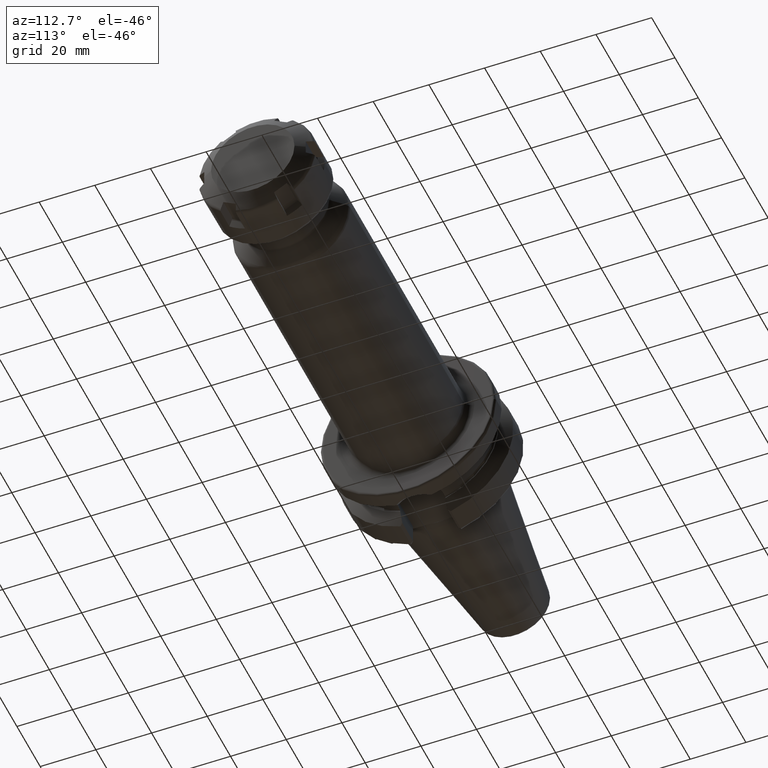
[diagram: clean part render]
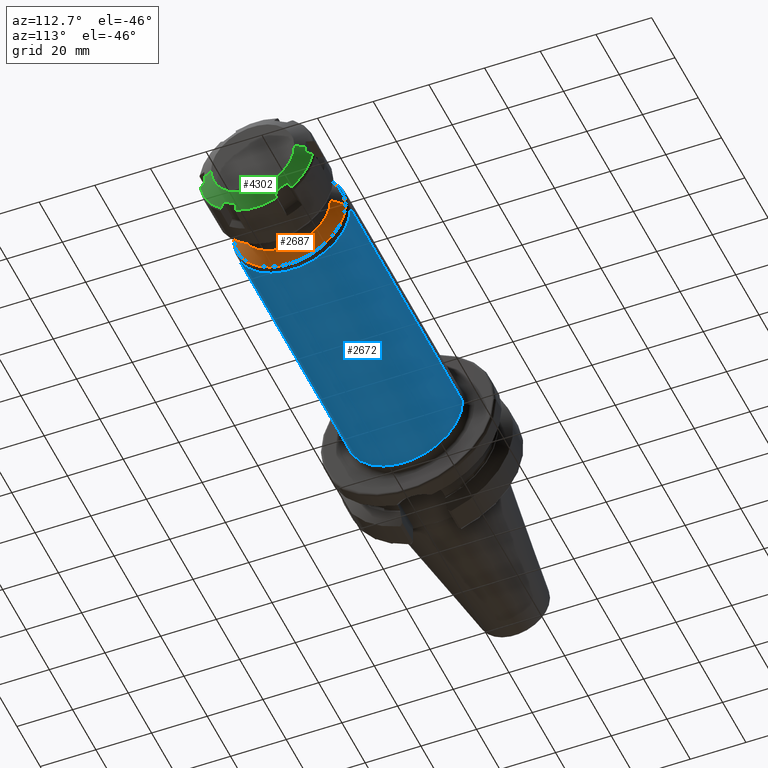
[diagram: same view with three faces highlighted in distinct colors, each labeled with its STEP entity id]
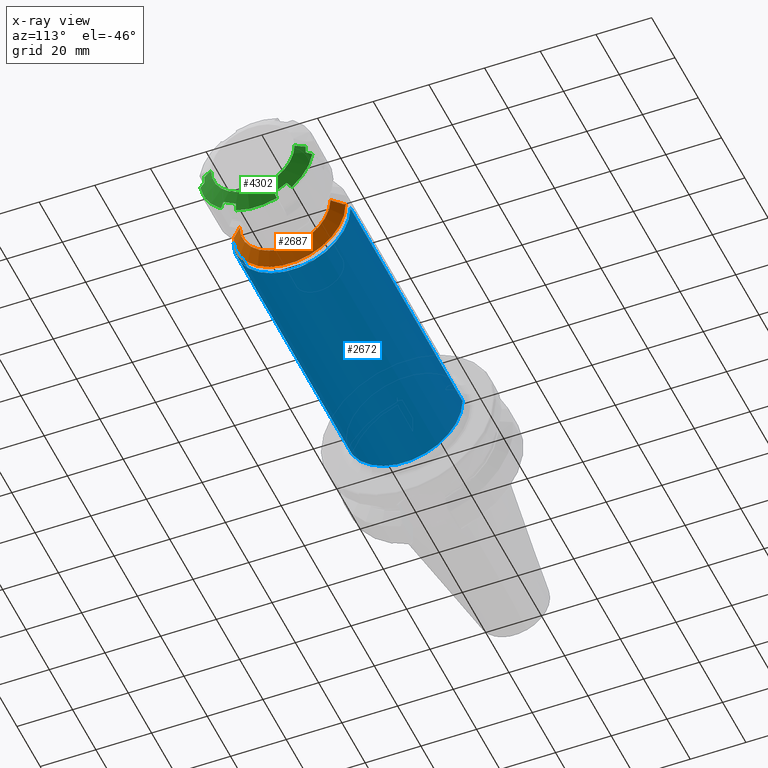
[diagram: x-ray of the same camera — body ghosted, the three highlighted faces saturated]
A machine part, auxiliary view with three faces highlighted in distinct colors.
The next image is the same camera in x-ray (body ghosted, the three faces saturated) — at least one of them is partly hidden behind the body in this view.
Their STEP definitions:

[orange] entity #2687 — the highlighted conical surface has half-angle 45 deg.
#894=CARTESIAN_POINT('',(1.283786796564E2,0.E0,0.E0));
#895=DIRECTION('',(-1.E0,0.E0,0.E0));
#896=DIRECTION('',(0.E0,1.E0,0.E0));
#897=AXIS2_PLACEMENT_3D('',#894,#895,#896);
#899=DIRECTION('',(-7.071067811865E-1,-7.071067811866E-1,-2.815876324346E-12));
#900=VECTOR('',#899,5.414213562372E0);
#901=CARTESIAN_POINT('',(1.322071067812E2,-1.629289321881E1,
8.869039863404E-13));
#902=LINE('',#901,#900);
#903=CARTESIAN_POINT('',(1.322071067812E2,0.E0,0.E0));
#904=DIRECTION('',(1.E0,0.E0,0.E0));
#905=DIRECTION('',(0.E0,-1.E0,0.E0));
#906=AXIS2_PLACEMENT_3D('',#903,#904,#905);
#908=DIRECTION('',(-7.071067811865E-1,7.071067811866E-1,2.815378832257E-12));
#909=VECTOR('',#908,5.414213562372E0);
#910=CARTESIAN_POINT('',(1.322071067812E2,1.629289321881E1,
-8.909694037952E-13));
#911=LINE('',#910,#909);
#1473=CARTESIAN_POINT('',(1.322071067812E2,-1.629289321881E1,0.E0));
#1474=CARTESIAN_POINT('',(1.322071067812E2,1.629289321881E1,0.E0));
#1475=VERTEX_POINT('',#1473);
#1476=VERTEX_POINT('',#1474);
#1485=CARTESIAN_POINT('',(1.283786796564E2,2.012132034356E1,0.E0));
#1486=CARTESIAN_POINT('',(1.283786796564E2,-2.012132034356E1,0.E0));
#1487=VERTEX_POINT('',#1485);
#1488=VERTEX_POINT('',#1486);
#2673=CARTESIAN_POINT('',(1.302928932188E2,0.E0,0.E0));
#2674=DIRECTION('',(-1.E0,0.E0,0.E0));
#2675=DIRECTION('',(0.E0,1.E0,0.E0));
#2676=AXIS2_PLACEMENT_3D('',#2673,#2674,#2675);
#2677=CONICAL_SURFACE('',#2676,1.820710678119E1,4.5E1);
#2678=ORIENTED_EDGE('',*,*,#2655,.T.);
#2680=ORIENTED_EDGE('',*,*,#2679,.F.);
#2682=ORIENTED_EDGE('',*,*,#2681,.T.);
#2684=ORIENTED_EDGE('',*,*,#2683,.T.);
#2685=EDGE_LOOP('',(#2678,#2680,#2682,#2684));
#2686=FACE_OUTER_BOUND('',#2685,.F.);
#2687=ADVANCED_FACE('',(#2686),#2677,.T.);
#898=CIRCLE('',#897,2.012132034356E1);
#907=CIRCLE('',#906,1.629289321881E1);
#2655=EDGE_CURVE('',#1487,#1488,#898,.T.);
#2679=EDGE_CURVE('',#1475,#1488,#902,.T.);
#2681=EDGE_CURVE('',#1475,#1476,#907,.T.);
#2683=EDGE_CURVE('',#1476,#1487,#911,.T.);

[blue] entity #2672 — the highlighted cylindrical surface (partial cylindrical patch) has radius 21 mm, axis along (1, 0, 0).
#876=CARTESIAN_POINT('',(1.262573593129E2,0.E0,0.E0));
#877=DIRECTION('',(-1.E0,0.E0,0.E0));
#878=DIRECTION('',(0.E0,1.E0,0.E0));
#879=AXIS2_PLACEMENT_3D('',#876,#877,#878);
#881=DIRECTION('',(-1.E0,0.E0,4.626039354949E-14));
#882=VECTOR('',#881,9.625735931288E1);
#883=CARTESIAN_POINT('',(1.262573593129E2,2.1E1,-3.075405800066E-12));
#884=LINE('',#883,#882);
#885=CARTESIAN_POINT('',(3.E1,0.E0,0.E0));
#886=DIRECTION('',(1.E0,0.E0,0.E0));
#887=DIRECTION('',(0.E0,-1.E0,0.E0));
#888=AXIS2_PLACEMENT_3D('',#885,#886,#887);
#890=DIRECTION('',(-1.E0,0.E0,-4.625854881271E-14));
#891=VECTOR('',#890,9.625735931288E1);
#892=CARTESIAN_POINT('',(1.262573593129E2,-2.1E1,3.074765702247E-12));
#893=LINE('',#892,#891);
#1469=CARTESIAN_POINT('',(3.E1,-2.1E1,0.E0));
#1470=CARTESIAN_POINT('',(3.E1,2.1E1,0.E0));
#1471=VERTEX_POINT('',#1469);
#1472=VERTEX_POINT('',#1470);
#1481=CARTESIAN_POINT('',(1.262573593129E2,2.1E1,0.E0));
#1482=CARTESIAN_POINT('',(1.262573593129E2,-2.1E1,0.E0));
#1483=VERTEX_POINT('',#1481);
#1484=VERTEX_POINT('',#1482);
#2661=CARTESIAN_POINT('',(2.095E1,0.E0,0.E0));
#2662=DIRECTION('',(1.E0,0.E0,0.E0));
#2663=DIRECTION('',(0.E0,-1.E0,0.E0));
#2664=AXIS2_PLACEMENT_3D('',#2661,#2662,#2663);
#2665=CYLINDRICAL_SURFACE('',#2664,2.1E1);
#2666=ORIENTED_EDGE('',*,*,#2652,.F.);
#2667=ORIENTED_EDGE('',*,*,#2627,.T.);
#2668=ORIENTED_EDGE('',*,*,#2597,.F.);
#2669=ORIENTED_EDGE('',*,*,#2624,.F.);
#2670=EDGE_LOOP('',(#2666,#2667,#2668,#2669));
#2671=FACE_OUTER_BOUND('',#2670,.F.);
#2672=ADVANCED_FACE('',(#2671),#2665,.T.);
#880=CIRCLE('',#879,2.1E1);
#889=CIRCLE('',#888,2.1E1);
#2597=EDGE_CURVE('',#1471,#1472,#889,.T.);
#2624=EDGE_CURVE('',#1484,#1471,#893,.T.);
#2627=EDGE_CURVE('',#1483,#1472,#884,.T.);
#2652=EDGE_CURVE('',#1483,#1484,#880,.T.);

[green] entity #4302 — the highlighted conical surface has half-angle 60 deg.
#3366=CARTESIAN_POINT('',(1.689674230311E1,7.405303719456E0,-1.898162537357E1));
#3367=CARTESIAN_POINT('',(1.708907504526E1,7.313084535866E0,-1.866001886072E1));
#3368=CARTESIAN_POINT('',(1.747048804972E1,7.130166601835E0,-1.802210821554E1));
#3369=CARTESIAN_POINT('',(1.784538315893E1,6.950287483250E0,-1.739479517924E1));
#3370=CARTESIAN_POINT('',(1.803119743883E1,6.861107026386E0,-1.708378596587E1));
#3372=CARTESIAN_POINT('',(1.689674230311E1,-1.915276904626E-14,0.E0));
#3373=DIRECTION('',(-1.E0,0.E0,0.E0));
#3374=DIRECTION('',(0.E0,3.634504892985E-1,-9.316135152673E-1));
#3375=AXIS2_PLACEMENT_3D('',#3372,#3373,#3374);
#3377=CARTESIAN_POINT('',(1.803119743883E1,-6.861107026386E0,
-1.708378596587E1));
#3378=CARTESIAN_POINT('',(1.784547076956E1,-6.950245435050E0,
-1.739464853974E1));
#3379=CARTESIAN_POINT('',(1.747066334160E1,-7.130082516612E0,
-1.802181497552E1));
#3380=CARTESIAN_POINT('',(1.708916272E1,-7.313042497819E0,-1.865987225663E1));
#3381=CARTESIAN_POINT('',(1.689674230311E1,-7.405303719456E0,
-1.898162537357E1));
#3383=CARTESIAN_POINT('',(1.803119743883E1,-1.136443912607E1,
-1.448378596587E1));
#3384=CARTESIAN_POINT('',(1.807831826555E1,-1.086395978015E1,
-1.477273785096E1));
#3385=CARTESIAN_POINT('',(1.814168574823E1,-9.863120560131E0,
-1.535057264405E1));
#3386=CARTESIAN_POINT('',(1.814168449187E1,-8.362394930781E0,
-1.621701699013E1));
#3387=CARTESIAN_POINT('',(1.807831703246E1,-7.361573275411E0,
-1.679484164227E1));
#3388=CARTESIAN_POINT('',(1.803119743883E1,-6.861107026386E0,
-1.708378596587E1));
#3390=CARTESIAN_POINT('',(1.689674230311E1,-1.273591791890E1,
-1.590399383057E1));
#3391=CARTESIAN_POINT('',(1.708907504526E1,-1.250350810055E1,
-1.566332641844E1));
#3392=CARTESIAN_POINT('',(1.747048804972E1,-1.204252024350E1,
-1.518595951818E1));
#3393=CARTESIAN_POINT('',(1.784538315893E1,-1.158919077723E1,
-1.471652311372E1));
#3394=CARTESIAN_POINT('',(1.803119743883E1,-1.136443912607E1,
-1.448378596587E1));
#3396=CARTESIAN_POINT('',(1.689674230311E1,-1.915276904626E-14,0.E0));
#3397=DIRECTION('',(-1.E0,0.E0,0.E0));
#3398=DIRECTION('',(0.E0,-6.250757260812E-1,-7.805641143840E-1));
#3399=AXIS2_PLACEMENT_3D('',#3396,#3397,#3398);
#3401=CARTESIAN_POINT('',(1.803119743883E1,-1.822554615245E1,-2.6E0));
#3402=CARTESIAN_POINT('',(1.784547076956E1,-1.853933024284E1,
-2.678235160582E0));
#3403=CARTESIAN_POINT('',(1.747066334160E1,-1.917239084941E1,
-2.836074897296E0));
#3404=CARTESIAN_POINT('',(1.708916272E1,-1.981644465452E1,-2.996655546247E0));
#3405=CARTESIAN_POINT('',(1.689674230311E1,-2.014122163836E1,
-3.077631542997E0));
#3407=CARTESIAN_POINT('',(1.813773006060E1,-1.822554615245E1,0.E0));
#3408=CARTESIAN_POINT('',(1.813773006060E1,-1.822554615245E1,
-2.889809035546E-1));
#3409=CARTESIAN_POINT('',(1.812978891864E1,-1.822554615245E1,
-8.668802635554E-1));
#3410=CARTESIAN_POINT('',(1.809415446357E1,-1.822554615245E1,
-1.733491685998E0));
#3411=CARTESIAN_POINT('',(1.805474752385E1,-1.822554615245E1,
-2.311174784706E0));
#3412=CARTESIAN_POINT('',(1.803119743883E1,-1.822554615245E1,-2.6E0));
#3414=DIRECTION('',(-5.E-1,-8.660254037844E-1,0.E0));
#3415=VECTOR('',#3414,3.724539878802E0);
#3416=CARTESIAN_POINT('',(2.E1,-1.5E1,0.E0));
#3417=LINE('',#3416,#3415);
#3418=CARTESIAN_POINT('',(2.E1,-2.266909448450E-14,0.E0));
#3419=DIRECTION('',(-1.E0,0.E0,0.E0));
#3420=DIRECTION('',(0.E0,1.E0,0.E0));
#3421=AXIS2_PLACEMENT_3D('',#3418,#3419,#3420);
#3423=DIRECTION('',(-5.E-1,8.660254037844E-1,1.219275797742E-14));
#3424=VECTOR('',#3423,3.724539878802E0);
#3425=CARTESIAN_POINT('',(2.E1,1.5E1,0.E0));
#3426=LINE('',#3425,#3424);
#3427=CARTESIAN_POINT('',(1.803119743883E1,1.822554615245E1,-2.6E0));
#3428=CARTESIAN_POINT('',(1.805475075341E1,1.822554615245E1,-2.311135176476E0));
#3429=CARTESIAN_POINT('',(1.809415978675E1,1.822554615245E1,-1.733399257211E0));
#3430=CARTESIAN_POINT('',(1.812979067473E1,1.822554615245E1,
-8.668016124823E-1));
#3431=CARTESIAN_POINT('',(1.813773006060E1,1.822554615245E1,
-2.889472613191E-1));
#3432=CARTESIAN_POINT('',(1.813773006060E1,1.822554615245E1,
4.663706011864E-14));
#3434=CARTESIAN_POINT('',(1.689674230311E1,2.014122163836E1,-3.077631542997E0));
#3435=CARTESIAN_POINT('',(1.708907504526E1,1.981659263641E1,-2.996692442277E0));
#3436=CARTESIAN_POINT('',(1.747048804972E1,1.917268684533E1,-2.836148697367E0));
#3437=CARTESIAN_POINT('',(1.784538315893E1,1.853947826048E1,-2.678272065523E0));
#3438=CARTESIAN_POINT('',(1.803119743883E1,1.822554615245E1,-2.6E0));
#3440=CARTESIAN_POINT('',(1.689674230311E1,-1.915276904626E-14,0.E0));
#3441=DIRECTION('',(-1.E0,0.E0,0.E0));
#3442=DIRECTION('',(0.E0,9.885262153796E-1,-1.510494008833E-1));
#3443=AXIS2_PLACEMENT_3D('',#3440,#3441,#3442);
#3445=CARTESIAN_POINT('',(1.803119743883E1,1.136443912607E1,-1.448378596587E1));
#3446=CARTESIAN_POINT('',(1.784547076956E1,1.158908480779E1,-1.471641337916E1));
#3447=CARTESIAN_POINT('',(1.747066334160E1,1.204230833280E1,-1.518574007823E1));
#3448=CARTESIAN_POINT('',(1.708916272E1,1.250340215670E1,-1.566321671038E1));
#3449=CARTESIAN_POINT('',(1.689674230311E1,1.273591791890E1,-1.590399383057E1));
#3451=CARTESIAN_POINT('',(1.803119743883E1,6.861107026386E0,-1.708378596587E1));
#3452=CARTESIAN_POINT('',(1.807831826555E1,7.361586372305E0,-1.679483408078E1));
#3453=CARTESIAN_POINT('',(1.814168574823E1,8.362425592320E0,-1.621699928769E1));
#3454=CARTESIAN_POINT('',(1.814168449187E1,9.863151221670E0,-1.535055494160E1));
#3455=CARTESIAN_POINT('',(1.807831703246E1,1.086397287704E1,-1.477273028946E1));
#3456=CARTESIAN_POINT('',(1.803119743883E1,1.136443912607E1,-1.448378596587E1));
#3733=CARTESIAN_POINT('',(1.813773006060E1,1.822554615245E1,
4.663706011864E-14));
#3750=CARTESIAN_POINT('',(1.813773006060E1,-1.822554615245E1,0.E0));
#4150=CARTESIAN_POINT('',(2.E1,1.5E1,0.E0));
#4151=CARTESIAN_POINT('',(2.E1,-1.5E1,0.E0));
#4152=VERTEX_POINT('',#4150);
#4153=VERTEX_POINT('',#4151);
#4164=VERTEX_POINT('',#3733);
#4165=VERTEX_POINT('',#3434);
#4166=VERTEX_POINT('',#3438);
#4209=VERTEX_POINT('',#3750);
#4210=VERTEX_POINT('',#3401);
#4211=VERTEX_POINT('',#3405);
#4224=VERTEX_POINT('',#3390);
#4225=VERTEX_POINT('',#3394);
#4226=VERTEX_POINT('',#3377);
#4227=VERTEX_POINT('',#3381);
#4238=VERTEX_POINT('',#3366);
#4239=VERTEX_POINT('',#3370);
#4240=VERTEX_POINT('',#3445);
#4241=VERTEX_POINT('',#3449);
#4264=CARTESIAN_POINT('',(1.844837115155E1,-2.091093176538E-14,0.E0));
#4265=DIRECTION('',(-1.E0,0.E0,0.E0));
#4266=DIRECTION('',(0.E0,1.E0,0.E0));
#4267=AXIS2_PLACEMENT_3D('',#4264,#4265,#4266);
#4268=CONICAL_SURFACE('',#4267,1.76875E1,6.E1);
#4270=ORIENTED_EDGE('',*,*,#4269,.F.);
#4272=ORIENTED_EDGE('',*,*,#4271,.T.);
#4274=ORIENTED_EDGE('',*,*,#4273,.F.);
#4276=ORIENTED_EDGE('',*,*,#4275,.F.);
#4278=ORIENTED_EDGE('',*,*,#4277,.F.);
#4280=ORIENTED_EDGE('',*,*,#4279,.T.);
#4282=ORIENTED_EDGE('',*,*,#4281,.F.);
#4284=ORIENTED_EDGE('',*,*,#4283,.F.);
#4286=ORIENTED_EDGE('',*,*,#4285,.F.);
#4287=ORIENTED_EDGE('',*,*,#4257,.F.);
#4289=ORIENTED_EDGE('',*,*,#4288,.T.);
#4291=ORIENTED_EDGE('',*,*,#4290,.F.);
#4293=ORIENTED_EDGE('',*,*,#4292,.F.);
#4295=ORIENTED_EDGE('',*,*,#4294,.T.);
#4297=ORIENTED_EDGE('',*,*,#4296,.F.);
#4299=ORIENTED_EDGE('',*,*,#4298,.F.);
#4300=EDGE_LOOP('',(#4270,#4272,#4274,#4276,#4278,#4280,#4282,#4284,#4286,#4287,
#4289,#4291,#4293,#4295,#4297,#4299));
#4301=FACE_OUTER_BOUND('',#4300,.F.);
#4302=ADVANCED_FACE('',(#4301),#4268,.T.);
#3371=B_SPLINE_CURVE_WITH_KNOTS('',3,(#3366,#3367,#3368,#3369,#3370),
.UNSPECIFIED.,.F.,.F.,(4,1,4),(0.E0,5.E-1,1.E0),.UNSPECIFIED.);
#3376=CIRCLE('',#3375,2.0375E1);
#3382=B_SPLINE_CURVE_WITH_KNOTS('',3,(#3377,#3378,#3379,#3380,#3381),
.UNSPECIFIED.,.F.,.F.,(4,1,4),(0.E0,5.E-1,1.E0),.UNSPECIFIED.);
#3389=B_SPLINE_CURVE_WITH_KNOTS('',3,(#3383,#3384,#3385,#3386,#3387,#3388),
.UNSPECIFIED.,.F.,.F.,(4,1,1,4),(0.E0,3.333333333333E-1,6.666666666667E-1,1.E0),
.UNSPECIFIED.);
#3395=B_SPLINE_CURVE_WITH_KNOTS('',3,(#3390,#3391,#3392,#3393,#3394),
.UNSPECIFIED.,.F.,.F.,(4,1,4),(0.E0,5.E-1,1.E0),.UNSPECIFIED.);
#3400=CIRCLE('',#3399,2.0375E1);
#3406=B_SPLINE_CURVE_WITH_KNOTS('',3,(#3401,#3402,#3403,#3404,#3405),
.UNSPECIFIED.,.F.,.F.,(4,1,4),(0.E0,5.E-1,1.E0),.UNSPECIFIED.);
#3413=B_SPLINE_CURVE_WITH_KNOTS('',3,(#3407,#3408,#3409,#3410,#3411,#3412),
.UNSPECIFIED.,.F.,.F.,(4,1,1,4),(0.E0,3.333333333333E-1,6.666666666667E-1,1.E0),
.UNSPECIFIED.);
#3422=CIRCLE('',#3421,1.5E1);
#3433=B_SPLINE_CURVE_WITH_KNOTS('',3,(#3427,#3428,#3429,#3430,#3431,#3432),
.UNSPECIFIED.,.F.,.F.,(4,1,1,4),(0.E0,3.333333333333E-1,6.666666666667E-1,1.E0),
.UNSPECIFIED.);
#3439=B_SPLINE_CURVE_WITH_KNOTS('',3,(#3434,#3435,#3436,#3437,#3438),
.UNSPECIFIED.,.F.,.F.,(4,1,4),(0.E0,5.E-1,1.E0),.UNSPECIFIED.);
#3444=CIRCLE('',#3443,2.0375E1);
#3450=B_SPLINE_CURVE_WITH_KNOTS('',3,(#3445,#3446,#3447,#3448,#3449),
.UNSPECIFIED.,.F.,.F.,(4,1,4),(0.E0,5.E-1,1.E0),.UNSPECIFIED.);
#3457=B_SPLINE_CURVE_WITH_KNOTS('',3,(#3451,#3452,#3453,#3454,#3455,#3456),
.UNSPECIFIED.,.F.,.F.,(4,1,1,4),(0.E0,3.333333333333E-1,6.666666666667E-1,1.E0),
.UNSPECIFIED.);
#4257=EDGE_CURVE('',#4152,#4153,#3422,.T.);
#4269=EDGE_CURVE('',#4238,#4239,#3371,.T.);
#4271=EDGE_CURVE('',#4238,#4227,#3376,.T.);
#4273=EDGE_CURVE('',#4226,#4227,#3382,.T.);
#4275=EDGE_CURVE('',#4225,#4226,#3389,.T.);
#4277=EDGE_CURVE('',#4224,#4225,#3395,.T.);
#4279=EDGE_CURVE('',#4224,#4211,#3400,.T.);
#4281=EDGE_CURVE('',#4210,#4211,#3406,.T.);
#4283=EDGE_CURVE('',#4209,#4210,#3413,.T.);
#4285=EDGE_CURVE('',#4153,#4209,#3417,.T.);
#4288=EDGE_CURVE('',#4152,#4164,#3426,.T.);
#4290=EDGE_CURVE('',#4166,#4164,#3433,.T.);
#4292=EDGE_CURVE('',#4165,#4166,#3439,.T.);
#4294=EDGE_CURVE('',#4165,#4241,#3444,.T.);
#4296=EDGE_CURVE('',#4240,#4241,#3450,.T.);
#4298=EDGE_CURVE('',#4239,#4240,#3457,.T.);